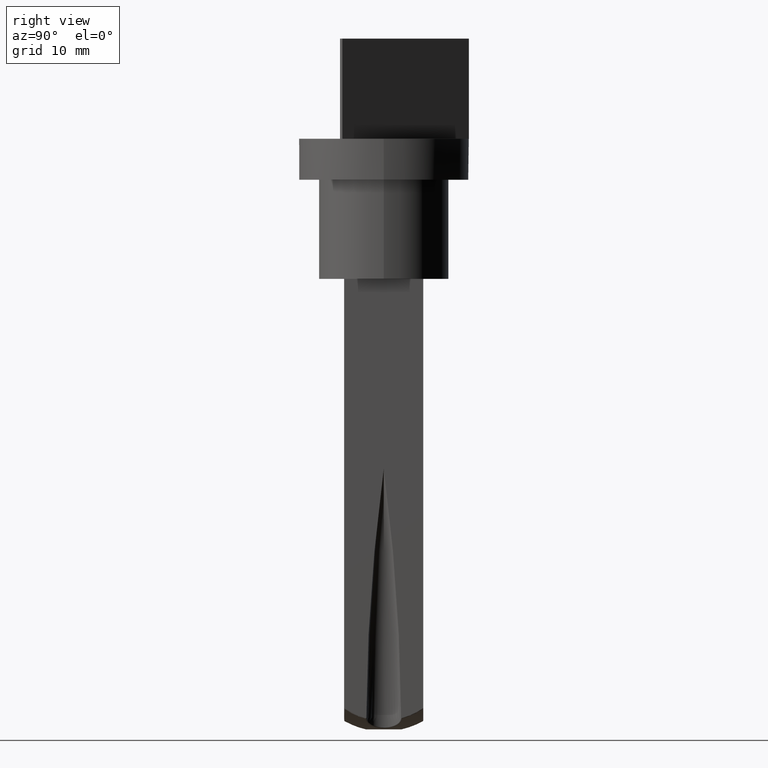
[diagram: clean part render]
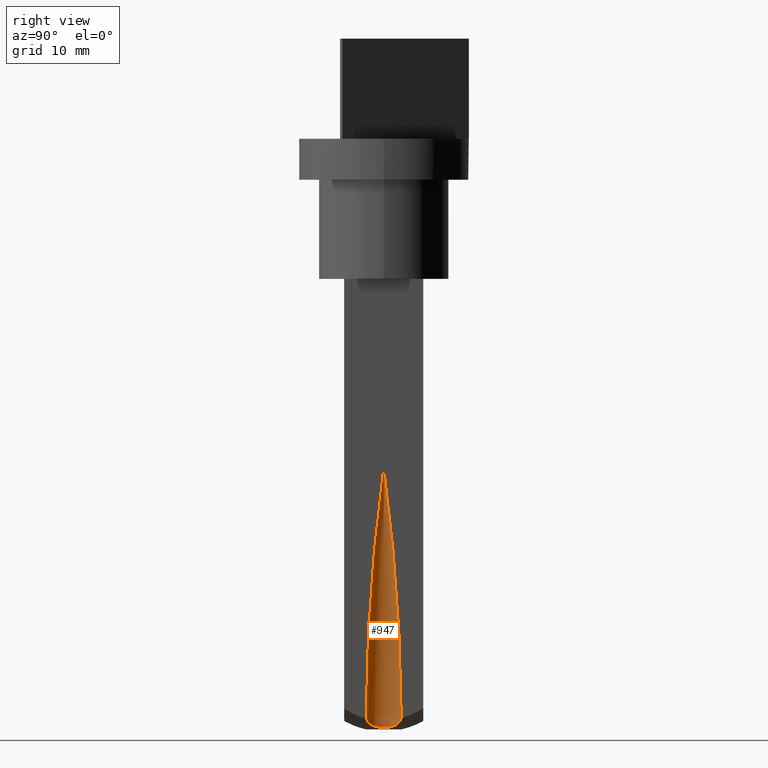
[diagram: same view with one face highlighted and labeled with its STEP entity id]
A machine part, right view. The second image highlights one B-rep face of the part: STEP entity #947.
In plain terms, the highlighted toroidal blend (fillet) surface has major radius 192.268 mm and minor (blend) radius 194.018 mm.
Its self-contained STEP definition (entity closure, byte-faithful):
#506 = VERTEX_POINT ( 'NONE', #8842 ) ;
#737 = DIRECTION ( 'NONE',  ( 1.000000000000000000, 0.000000000000000000, 0.000000000000000000 ) ) ;
#744 = CARTESIAN_POINT ( 'NONE',  ( 2.266914798338040438, -0.4943262147240023441, -51.77291446303143374 ) ) ;
#835 = CARTESIAN_POINT ( 'NONE',  ( 2.199825024419108654, 0.1210102354082352588, -51.80974501887452277 ) ) ;
#947 = ADVANCED_FACE ( 'NONE', ( #11828 ), #7173, .F. ) ;
#1677 = DIRECTION ( 'NONE',  ( 0.000000000000000000, -2.489188484111250531E-14, 1.000000000000000000 ) ) ;
#1701 = CARTESIAN_POINT ( 'NONE',  ( 3.950000000000000178, 0.000000000000000000, -52.00000000000000000 ) ) ;
#1806 = CARTESIAN_POINT ( 'NONE',  ( 2.682710979477014313, -1.211445299975372647, -51.54063150816911332 ) ) ;
#1835 = ORIENTED_EDGE ( 'NONE', *, *, #13709, .T. ) ;
#1960 = CARTESIAN_POINT ( 'NONE',  ( 2.264150662233629152, 0.4849370447513332572, -51.77443533707103995 ) ) ;
#2097 = EDGE_CURVE ( 'NONE', #11471, #7059, #2335, .T. ) ;
#2335 = CIRCLE ( 'NONE', #13468, 194.0178571428576788 ) ;
#2923 = DIRECTION ( 'NONE',  ( 0.000000000000000000, 0.000000000000000000, 1.000000000000000000 ) ) ;
#3130 = CARTESIAN_POINT ( 'NONE',  ( 3.530828465172155983, 1.710597525921998985, -51.04328972775600448 ) ) ;
#3352 = DIRECTION ( 'NONE',  ( 0.000000000000000000, -1.000000000000000000, -1.836970198721029934E-16 ) ) ;
#3463 = B_SPLINE_CURVE_WITH_KNOTS ( 'NONE', 3,
 ( #8631, #8581, #7577, #9596, #13045, #7421, #12850, #1806, #9648, #13943, #12996, #4226, #744, #4179, #11854, #835, #11899, #1960, #4130, #11953, #9693, #11803, #5196, #5243, #12947, #3130, #9545, #12898 ),
 .UNSPECIFIED., .F., .F.,
 ( 4, 2, 2, 2, 2, 2, 2, 2, 2, 2, 2, 2, 2, 4 ),
 ( 1.629624753548408703E-17, 0.0007486645857417767100, 0.001122996878612662680, 0.001497329171483548433, 0.001871661464354434186, 0.002245993757225320589, 0.002620326050096206776, 0.002994658342967092962, 0.003368990635837978715, 0.003743322928708863601, 0.004117655221579748920, 0.004491987514450635106, 0.005240652100192405745, 0.005989316685934177251 ),
 .UNSPECIFIED. ) ;
#3692 = AXIS2_PLACEMENT_3D ( 'NONE', #1701, #11001, #3352 ) ;
#4130 = CARTESIAN_POINT ( 'NONE',  ( 2.302975013055006404, 0.6031770951658375068, -51.75307258919807651 ) ) ;
#4174 = CARTESIAN_POINT ( 'NONE',  ( 3.950000000000000178, 192.2678571428577072, -51.99999999999996447 ) ) ;
#4179 = CARTESIAN_POINT ( 'NONE',  ( 2.214319139712989770, -0.2542774077592853676, -51.80181372173077392 ) ) ;
#4226 = CARTESIAN_POINT ( 'NONE',  ( 2.306067435545680500, -0.6116796858658556379, -51.75136739235958316 ) ) ;
#4868 = CARTESIAN_POINT ( 'NONE',  ( 3.950000000000000178, -192.2678571428577072, -52.00000000000003553 ) ) ;
#5088 = CARTESIAN_POINT ( 'NONE',  ( 3.950000000000000178, -1.746177941999937921, -50.78218211626187895 ) ) ;
#5196 = CARTESIAN_POINT ( 'NONE',  ( 2.677784426126053052, 1.206343835815196996, -51.54342860769509116 ) ) ;
#5243 = CARTESIAN_POINT ( 'NONE',  ( 2.930642195787398041, 1.439744397435666290, -51.39898973766476331 ) ) ;
#7059 = VERTEX_POINT ( 'NONE', #5088 ) ;
#7173 = TOROIDAL_SURFACE ( 'NONE', #3692, -192.2678571428577072, 194.0178571428576788 ) ;
#7421 = CARTESIAN_POINT ( 'NONE',  ( 2.940138606648888597, -1.432307342363867475, -51.39305992440876736 ) ) ;
#7577 = CARTESIAN_POINT ( 'NONE',  ( 3.531184525361478865, -1.710503374418303135, -51.04306019812866424 ) ) ;
#8524 = ORIENTED_EDGE ( 'NONE', *, *, #8724, .T. ) ;
#8581 = CARTESIAN_POINT ( 'NONE',  ( 3.739087125246859156, -1.747015290764017736, -50.91558253241351650 ) ) ;
#8631 = CARTESIAN_POINT ( 'NONE',  ( 3.950000000000000178, -1.746177941999937921, -50.78218211626187895 ) ) ;
#8724 = EDGE_CURVE ( 'NONE', #7059, #506, #3463, .T. ) ;
#8842 = CARTESIAN_POINT ( 'NONE',  ( 3.950000000000000178, 1.746177941999937921, -50.78218211626187184 ) ) ;
#9545 = CARTESIAN_POINT ( 'NONE',  ( 3.738774753989890343, 1.747016530914389465, -50.91578010430534817 ) ) ;
#9596 = CARTESIAN_POINT ( 'NONE',  ( 3.227429717814084054, -1.595844297265955891, -51.22473906818494527 ) ) ;
#9648 = CARTESIAN_POINT ( 'NONE',  ( 2.603886714392619428, -1.123655023067078540, -51.58519371225220596 ) ) ;
#9693 = CARTESIAN_POINT ( 'NONE',  ( 2.462099579217853051, 0.9282424212093156601, -51.66478699106550465 ) ) ;
#9981 = AXIS2_PLACEMENT_3D ( 'NONE', #4868, #12729, #1677 ) ;
#10198 = CARTESIAN_POINT ( 'NONE',  ( 3.950000000000000178, 0.000000000000000000, -25.99999999999999645 ) ) ;
#11001 = DIRECTION ( 'NONE',  ( -0.000000000000000000, -1.836970198721029934E-16, 1.000000000000000000 ) ) ;
#11471 = VERTEX_POINT ( 'NONE', #10198 ) ;
#11784 = CIRCLE ( 'NONE', #9981, 194.0178571428576788 ) ;
#11803 = CARTESIAN_POINT ( 'NONE',  ( 2.600637791443513258, 1.119901174107141628, -51.58702827267060087 ) ) ;
#11828 = FACE_OUTER_BOUND ( 'NONE', #12311, .T. ) ;
#11854 = CARTESIAN_POINT ( 'NONE',  ( 2.200370168130854509, -0.1286481552029822562, -51.80944634941335636 ) ) ;
#11899 = CARTESIAN_POINT ( 'NONE',  ( 2.212769246436780968, 0.2436983853413152712, -51.80266305510256331 ) ) ;
#11953 = CARTESIAN_POINT ( 'NONE',  ( 2.401417235963439367, 0.8234899255625924841, -51.69854475654966564 ) ) ;
#12311 = EDGE_LOOP ( 'NONE', ( #13851, #8524, #1835 ) ) ;
#12729 = DIRECTION ( 'NONE',  ( 1.000000000000000000, 0.000000000000000000, 0.000000000000000000 ) ) ;
#12850 = CARTESIAN_POINT ( 'NONE',  ( 2.850863340094415221, -1.365518424124555041, -51.44454341463352165 ) ) ;
#12898 = CARTESIAN_POINT ( 'NONE',  ( 3.950000000000000178, 1.746177941999937921, -50.78218211626187184 ) ) ;
#12947 = CARTESIAN_POINT ( 'NONE',  ( 3.123324642768478654, 1.556317136244965926, -51.28698868538878486 ) ) ;
#12996 = CARTESIAN_POINT ( 'NONE',  ( 2.406274187308892198, -0.8326464619259784650, -51.69584610245725287 ) ) ;
#13045 = CARTESIAN_POINT ( 'NONE',  ( 3.127892878666810539, -1.547306340820358450, -51.28347460359174192 ) ) ;
#13468 = AXIS2_PLACEMENT_3D ( 'NONE', #4174, #737, #2923 ) ;
#13709 = EDGE_CURVE ( 'NONE', #506, #11471, #11784, .T. ) ;
#13851 = ORIENTED_EDGE ( 'NONE', *, *, #2097, .T. ) ;
#13943 = CARTESIAN_POINT ( 'NONE',  ( 2.466266808207202121, -0.9347093749868163881, -51.66245843681026884 ) ) ;